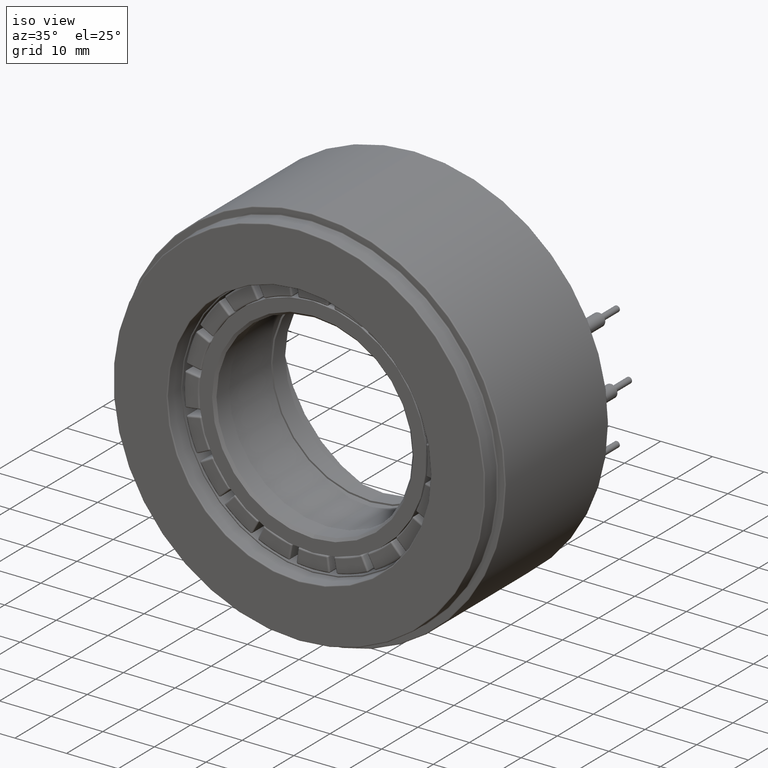
[diagram: clean part render]
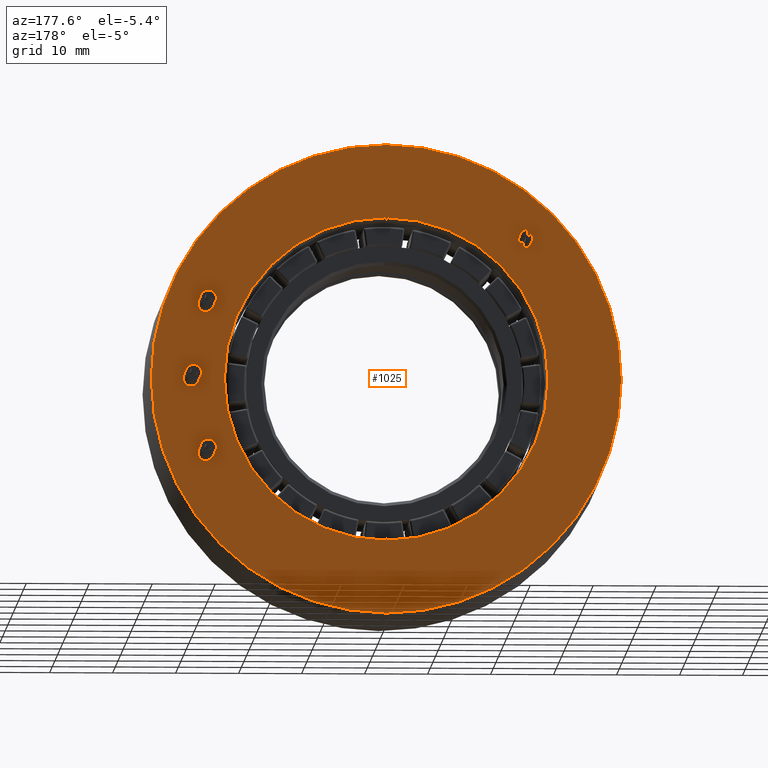
[diagram: tour spotlight — one face highlighted and labeled with its STEP entity id]
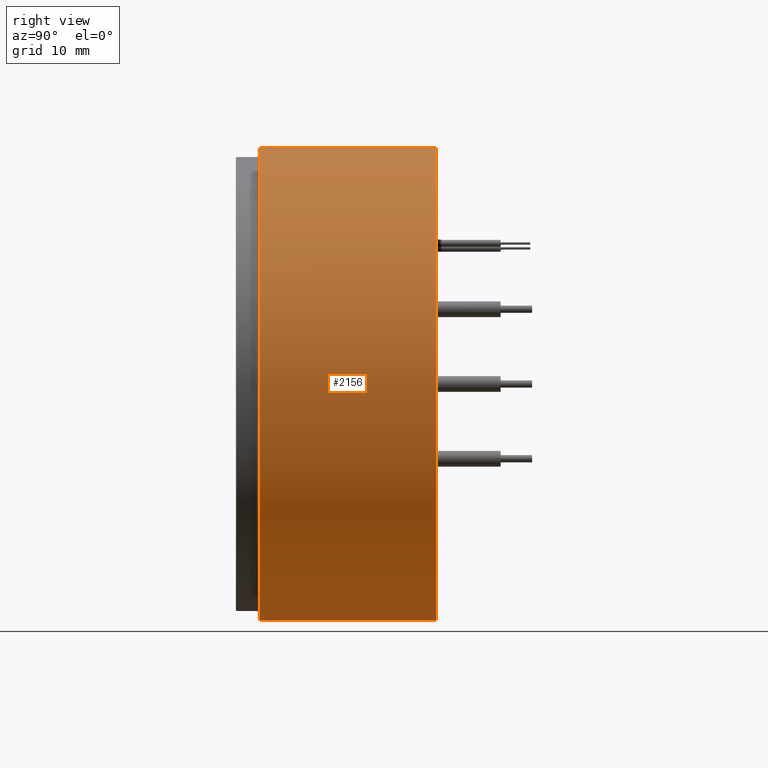
[diagram: tour spotlight — one face highlighted and labeled with its STEP entity id]
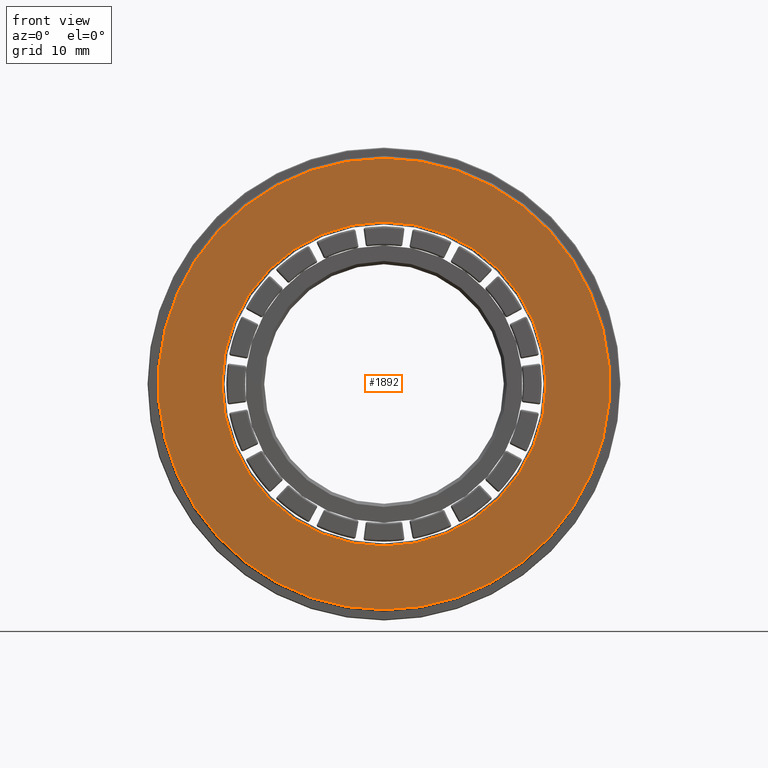
[diagram: tour spotlight — one face highlighted and labeled with its STEP entity id]
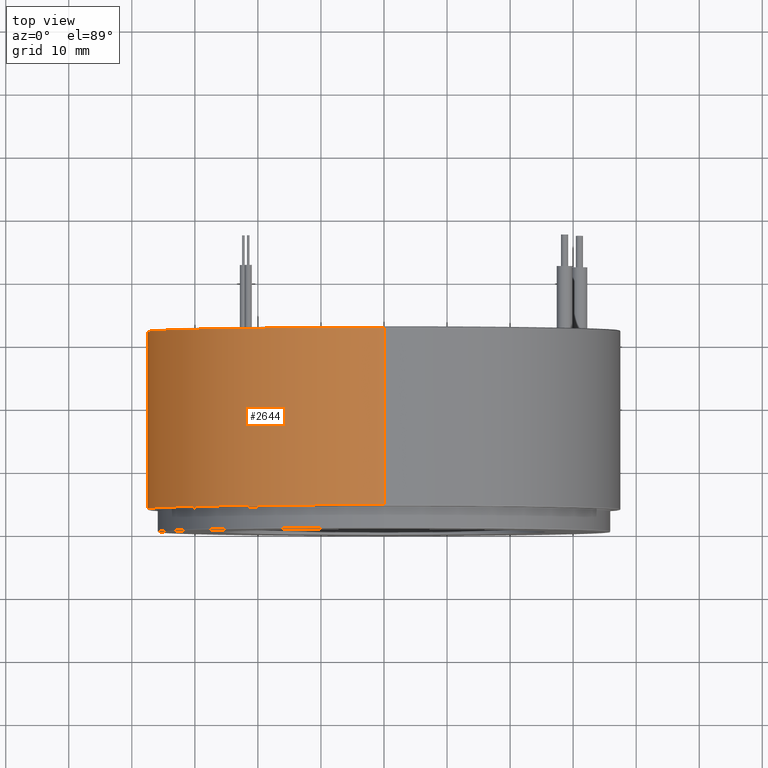
[diagram: tour spotlight — one face highlighted and labeled with its STEP entity id]
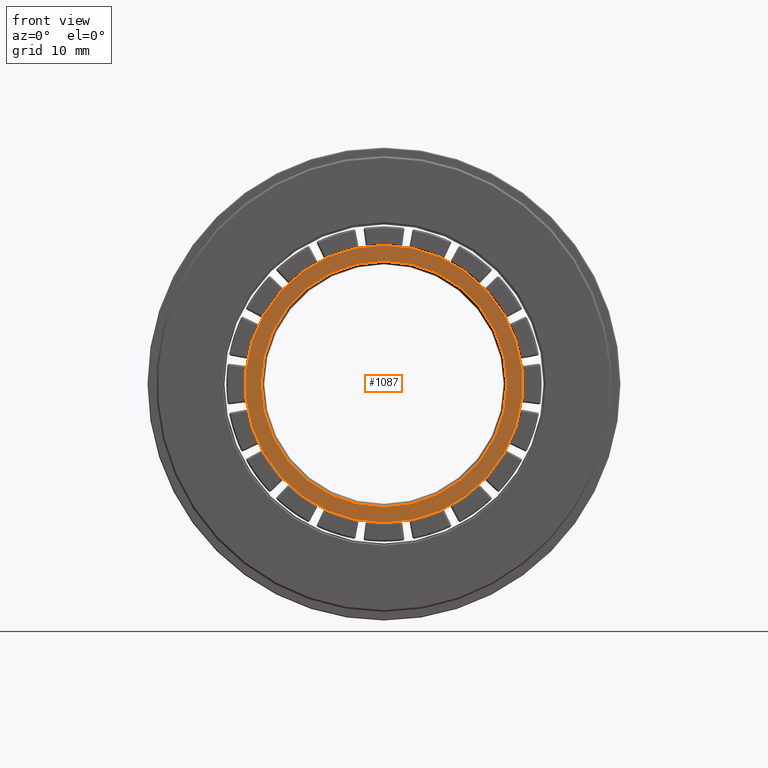
[diagram: tour spotlight — one face highlighted and labeled with its STEP entity id]
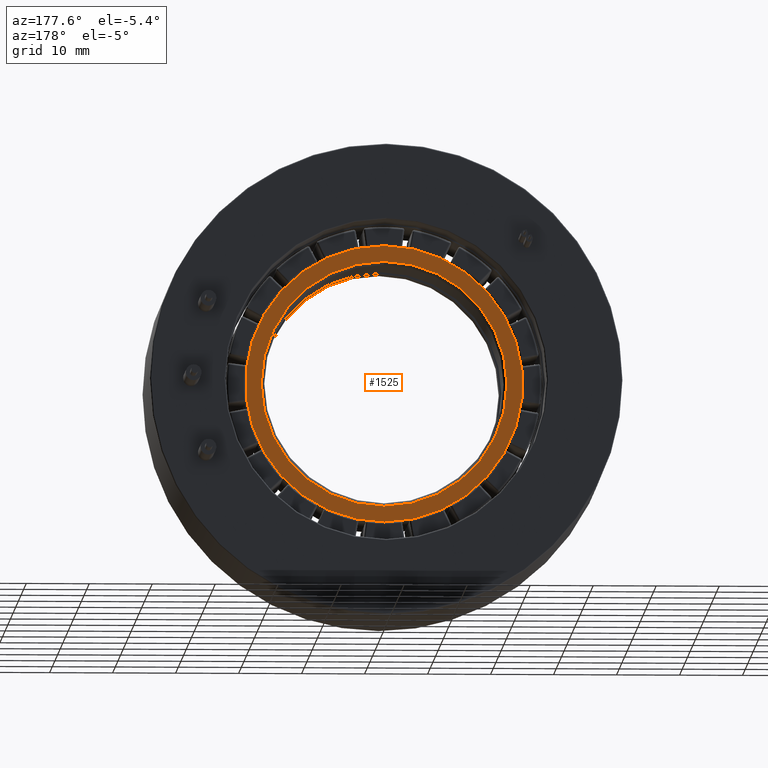
[diagram: tour spotlight — one face highlighted and labeled with its STEP entity id]
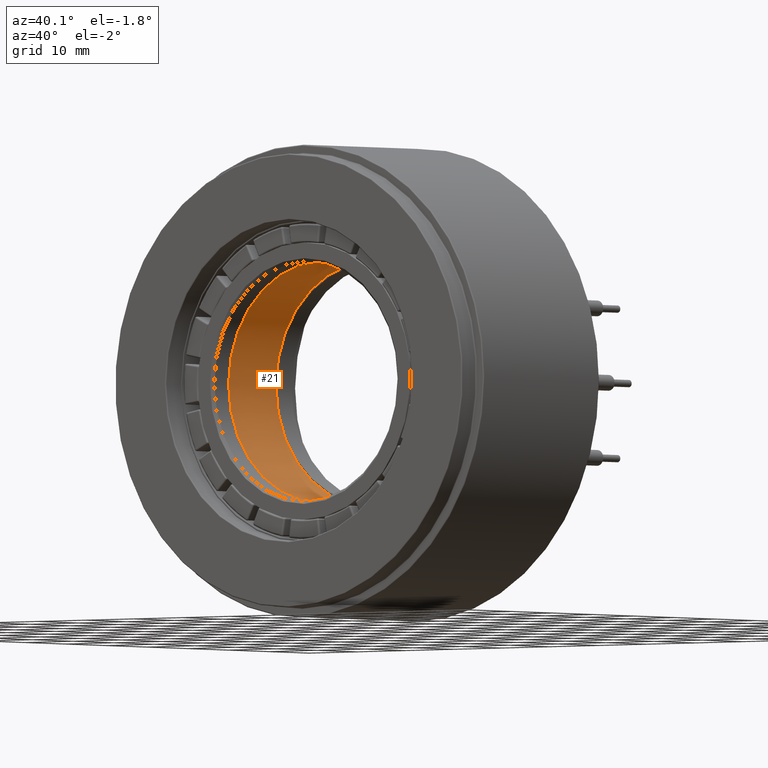
[diagram: tour spotlight — one face highlighted and labeled with its STEP entity id]
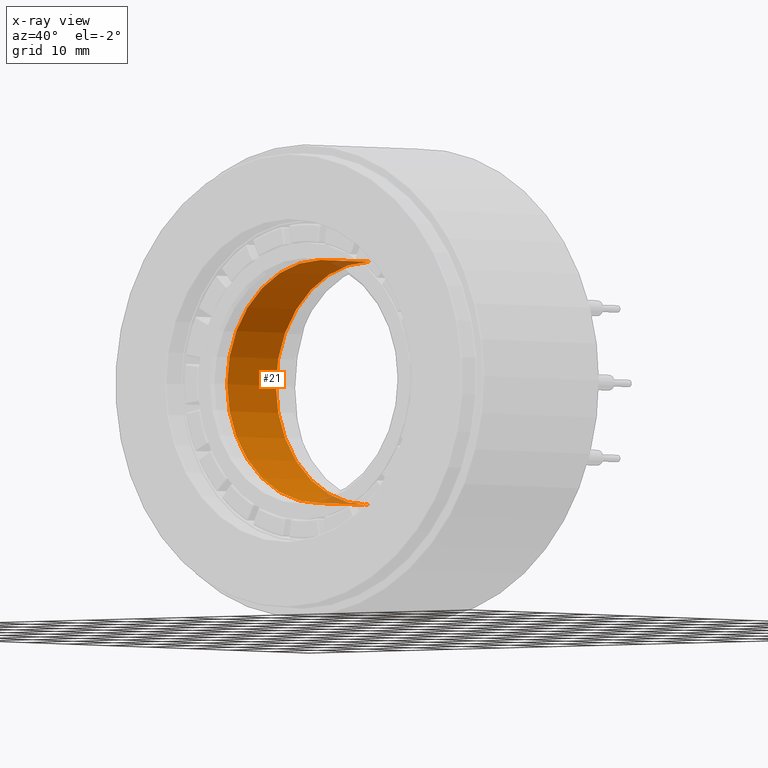
[diagram: x-ray of the same camera — body ghosted, this tour face saturated]
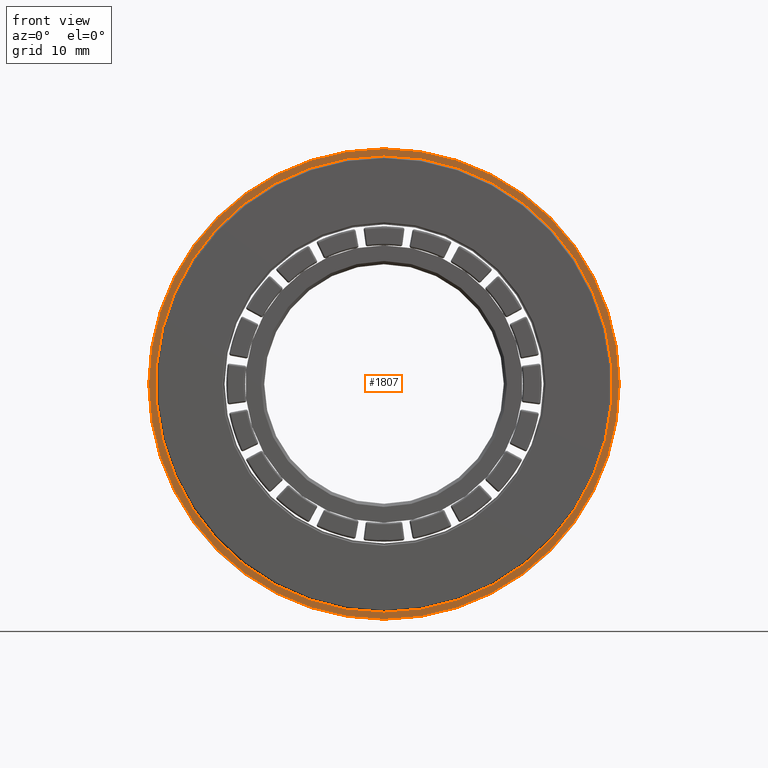
[diagram: tour spotlight — one face highlighted and labeled with its STEP entity id]
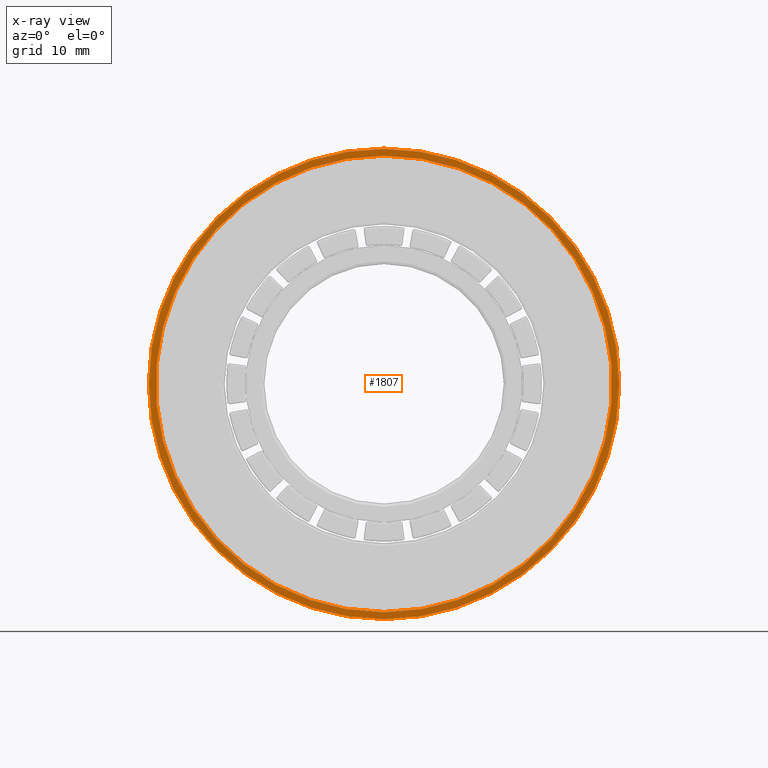
[diagram: x-ray of the same camera — body ghosted, this tour face saturated]
A machine part: a face-by-face anatomy tour. The part has 653 B-rep faces; the first image is the clean iso view, then the 8 largest visible faces are spotlighted one at a time (largest first), each with its STEP entity span.

Face 1 — auxiliary view, entity #1025. In plain terms, the highlighted planar face has unit normal (0, 1, 0).
Definition (entity closure, byte-faithful):
#22 = AXIS2_PLACEMENT_3D ( 'NONE', #2275, #3313, #1754 ) ;
#60 = VERTEX_POINT ( 'NONE', #1746 ) ;
#180 = VERTEX_POINT ( 'NONE', #2267 ) ;
#199 = CARTESIAN_POINT ( 'NONE',  ( 0.0000000000000000000, 32.00000000000000000, 0.0000000000000000000 ) ) ;
#314 = AXIS2_PLACEMENT_3D ( 'NONE', #2924, #2682, #2397 ) ;
#494 = CARTESIAN_POINT ( 'NONE',  ( 0.0000000000000000000, 32.00000000000000000, 25.69999999999999600 ) ) ;
#652 = ORIENTED_EDGE ( 'NONE', *, *, #3138, .T. ) ;
#668 = DIRECTION ( 'NONE',  ( 0.0000000000000000000, 0.0000000000000000000, 1.000000000000000000 ) ) ;
#826 = VERTEX_POINT ( 'NONE', #494 ) ;
#872 = CARTESIAN_POINT ( 'NONE',  ( 4.580179028811101000E-015, 32.00000000000000000, -37.29999999999999700 ) ) ;
#893 = CARTESIAN_POINT ( 'NONE',  ( 0.0000000000000000000, 32.00000000000000000, 0.0000000000000000000 ) ) ;
#936 = DIRECTION ( 'NONE',  ( -0.0000000000000000000, -1.000000000000000000, -0.0000000000000000000 ) ) ;
#963 = VERTEX_POINT ( 'NONE', #872 ) ;
#1025 = ADVANCED_FACE ( 'NONE', ( #3027, #3227 ), #2149, .T. ) ;
#1045 = CIRCLE ( 'NONE', #1390, 37.29999999999999700 ) ;
#1390 = AXIS2_PLACEMENT_3D ( 'NONE', #199, #1759, #1790 ) ;
#1524 = CIRCLE ( 'NONE', #2803, 25.69999999999999600 ) ;
#1699 = CARTESIAN_POINT ( 'NONE',  ( 0.0000000000000000000, 32.00000000000000000, 0.0000000000000000000 ) ) ;
#1746 = CARTESIAN_POINT ( 'NONE',  ( 3.147342273808697300E-015, 32.00000000000000000, -25.69999999999999600 ) ) ;
#1754 = DIRECTION ( 'NONE',  ( 0.0000000000000000000, 0.0000000000000000000, 1.000000000000000000 ) ) ;
#1759 = DIRECTION ( 'NONE',  ( 0.0000000000000000000, 1.000000000000000000, 0.0000000000000000000 ) ) ;
#1790 = DIRECTION ( 'NONE',  ( 0.0000000000000000000, 0.0000000000000000000, 1.000000000000000000 ) ) ;
#1847 = EDGE_CURVE ( 'NONE', #826, #60, #1524, .T. ) ;
#1948 = EDGE_CURVE ( 'NONE', #963, #180, #2465, .T. ) ;
#1951 = DIRECTION ( 'NONE',  ( -0.0000000000000000000, -1.000000000000000000, -0.0000000000000000000 ) ) ;
#2149 = PLANE ( 'NONE',  #314 ) ;
#2267 = CARTESIAN_POINT ( 'NONE',  ( 0.0000000000000000000, 32.00000000000000000, 37.29999999999999700 ) ) ;
#2275 = CARTESIAN_POINT ( 'NONE',  ( 0.0000000000000000000, 32.00000000000000000, 0.0000000000000000000 ) ) ;
#2397 = DIRECTION ( 'NONE',  ( 0.0000000000000000000, -0.0000000000000000000, 1.000000000000000000 ) ) ;
#2465 = CIRCLE ( 'NONE', #22, 37.29999999999999700 ) ;
#2540 = EDGE_LOOP ( 'NONE', ( #2618, #652 ) ) ;
#2618 = ORIENTED_EDGE ( 'NONE', *, *, #1847, .T. ) ;
#2673 = EDGE_LOOP ( 'NONE', ( #3097, #3212 ) ) ;
#2682 = DIRECTION ( 'NONE',  ( 0.0000000000000000000, 1.000000000000000000, 0.0000000000000000000 ) ) ;
#2736 = DIRECTION ( 'NONE',  ( 0.0000000000000000000, 0.0000000000000000000, 1.000000000000000000 ) ) ;
#2803 = AXIS2_PLACEMENT_3D ( 'NONE', #893, #936, #668 ) ;
#2884 = AXIS2_PLACEMENT_3D ( 'NONE', #1699, #1951, #2736 ) ;
#2924 = CARTESIAN_POINT ( 'NONE',  ( 25.50000000000000000, 32.00000000000000000, 0.0000000000000000000 ) ) ;
#3012 = CIRCLE ( 'NONE', #2884, 25.69999999999999600 ) ;
#3027 = FACE_BOUND ( 'NONE', #2540, .T. ) ;
#3097 = ORIENTED_EDGE ( 'NONE', *, *, #3320, .T. ) ;
#3138 = EDGE_CURVE ( 'NONE', #60, #826, #3012, .T. ) ;
#3212 = ORIENTED_EDGE ( 'NONE', *, *, #1948, .T. ) ;
#3227 = FACE_OUTER_BOUND ( 'NONE', #2673, .T. ) ;
#3313 = DIRECTION ( 'NONE',  ( 0.0000000000000000000, 1.000000000000000000, 0.0000000000000000000 ) ) ;
#3320 = EDGE_CURVE ( 'NONE', #180, #963, #1045, .T. ) ;

Face 2 — right view, entity #2156. In plain terms, the highlighted cylindrical surface (partial cylindrical patch) has radius 37.5 mm, axis along (-0, -1, -0).
Definition (entity closure, byte-faithful):
#110 = DIRECTION ( 'NONE',  ( 0.0000000000000000000, 1.000000000000000000, 0.0000000000000000000 ) ) ;
#157 = AXIS2_PLACEMENT_3D ( 'NONE', #2166, #110, #2443 ) ;
#182 = EDGE_LOOP ( 'NONE', ( #1794, #560, #1835, #2023 ) ) ;
#266 = DIRECTION ( 'NONE',  ( -0.0000000000000000000, -1.000000000000000000, -0.0000000000000000000 ) ) ;
#471 = AXIS2_PLACEMENT_3D ( 'NONE', #1839, #266, #1305 ) ;
#560 = ORIENTED_EDGE ( 'NONE', *, *, #2317, .T. ) ;
#715 = LINE ( 'NONE', #797, #2700 ) ;
#797 = CARTESIAN_POINT ( 'NONE',  ( 0.0000000000000000000, 0.0000000000000000000, -37.50000000000000000 ) ) ;
#908 = EDGE_CURVE ( 'NONE', #1006, #1668, #715, .T. ) ;
#966 = FACE_OUTER_BOUND ( 'NONE', #182, .T. ) ;
#1006 = VERTEX_POINT ( 'NONE', #3158 ) ;
#1131 = CYLINDRICAL_SURFACE ( 'NONE', #471, 37.50000000000000000 ) ;
#1206 = VECTOR ( 'NONE', #2879, 1000.000000000000000 ) ;
#1305 = DIRECTION ( 'NONE',  ( 0.0000000000000000000, 0.0000000000000000000, -1.000000000000000000 ) ) ;
#1328 = VERTEX_POINT ( 'NONE', #2826 ) ;
#1398 = CIRCLE ( 'NONE', #2518, 37.50000000000000000 ) ;
#1435 = LINE ( 'NONE', #1606, #1206 ) ;
#1455 = DIRECTION ( 'NONE',  ( 0.0000000000000000000, 0.0000000000000000000, 1.000000000000000000 ) ) ;
#1559 = DIRECTION ( 'NONE',  ( -0.0000000000000000000, -1.000000000000000000, -0.0000000000000000000 ) ) ;
#1606 = CARTESIAN_POINT ( 'NONE',  ( 4.592425496802574400E-015, 0.0000000000000000000, 37.50000000000000000 ) ) ;
#1668 = VERTEX_POINT ( 'NONE', #2941 ) ;
#1739 = EDGE_CURVE ( 'NONE', #2082, #1668, #2177, .T. ) ;
#1794 = ORIENTED_EDGE ( 'NONE', *, *, #1873, .T. ) ;
#1835 = ORIENTED_EDGE ( 'NONE', *, *, #1739, .T. ) ;
#1839 = CARTESIAN_POINT ( 'NONE',  ( 0.0000000000000000000, 0.0000000000000000000, 0.0000000000000000000 ) ) ;
#1873 = EDGE_CURVE ( 'NONE', #1006, #1328, #1398, .T. ) ;
#2023 = ORIENTED_EDGE ( 'NONE', *, *, #908, .F. ) ;
#2082 = VERTEX_POINT ( 'NONE', #2842 ) ;
#2156 = ADVANCED_FACE ( 'NONE', ( #966 ), #1131, .T. ) ;
#2166 = CARTESIAN_POINT ( 'NONE',  ( 0.0000000000000000000, 3.699999999999999700, 0.0000000000000000000 ) ) ;
#2177 = CIRCLE ( 'NONE', #157, 37.50000000000000000 ) ;
#2317 = EDGE_CURVE ( 'NONE', #1328, #2082, #1435, .T. ) ;
#2443 = DIRECTION ( 'NONE',  ( 0.0000000000000000000, 0.0000000000000000000, -1.000000000000000000 ) ) ;
#2518 = AXIS2_PLACEMENT_3D ( 'NONE', #2712, #2744, #1455 ) ;
#2700 = VECTOR ( 'NONE', #1559, 1000.000000000000000 ) ;
#2712 = CARTESIAN_POINT ( 'NONE',  ( 0.0000000000000000000, 31.80000000000000100, 0.0000000000000000000 ) ) ;
#2744 = DIRECTION ( 'NONE',  ( -0.0000000000000000000, -1.000000000000000000, -0.0000000000000000000 ) ) ;
#2826 = CARTESIAN_POINT ( 'NONE',  ( 4.592425496802574400E-015, 31.80000000000000100, 37.50000000000000000 ) ) ;
#2842 = CARTESIAN_POINT ( 'NONE',  ( 4.592425496802574400E-015, 3.699999999999999700, 37.50000000000000000 ) ) ;
#2879 = DIRECTION ( 'NONE',  ( -0.0000000000000000000, -1.000000000000000000, -0.0000000000000000000 ) ) ;
#2941 = CARTESIAN_POINT ( 'NONE',  ( 0.0000000000000000000, 3.699999999999999700, -37.50000000000000000 ) ) ;
#3158 = CARTESIAN_POINT ( 'NONE',  ( 0.0000000000000000000, 31.80000000000000100, -37.50000000000000000 ) ) ;

Face 3 — front view, entity #1892. In plain terms, the highlighted planar face has unit normal (0, -1, 0).
Definition (entity closure, byte-faithful):
#88 = ORIENTED_EDGE ( 'NONE', *, *, #648, .T. ) ;
#141 = EDGE_CURVE ( 'NONE', #1715, #2930, #1621, .T. ) ;
#149 = VERTEX_POINT ( 'NONE', #1448 ) ;
#163 = DIRECTION ( 'NONE',  ( 0.0000000000000000000, -1.000000000000000000, -0.0000000000000000000 ) ) ;
#234 = DIRECTION ( 'NONE',  ( 0.0000000000000000000, 1.000000000000000000, 0.0000000000000000000 ) ) ;
#293 = DIRECTION ( 'NONE',  ( 0.0000000000000000000, 1.000000000000000000, 0.0000000000000000000 ) ) ;
#363 = FACE_BOUND ( 'NONE', #1669, .T. ) ;
#382 = EDGE_LOOP ( 'NONE', ( #1813, #1199 ) ) ;
#411 = CIRCLE ( 'NONE', #1503, 25.69999999999999600 ) ;
#459 = DIRECTION ( 'NONE',  ( -0.0000000000000000000, -1.000000000000000000, -0.0000000000000000000 ) ) ;
#467 = DIRECTION ( 'NONE',  ( 0.0000000000000000000, 0.0000000000000000000, -1.000000000000000000 ) ) ;
#648 = EDGE_CURVE ( 'NONE', #149, #1227, #411, .T. ) ;
#704 = AXIS2_PLACEMENT_3D ( 'NONE', #2488, #163, #2724 ) ;
#785 = EDGE_CURVE ( 'NONE', #1227, #149, #1662, .T. ) ;
#800 = AXIS2_PLACEMENT_3D ( 'NONE', #2066, #2339, #1828 ) ;
#1024 = DIRECTION ( 'NONE',  ( 0.0000000000000000000, 0.0000000000000000000, -1.000000000000000000 ) ) ;
#1073 = CARTESIAN_POINT ( 'NONE',  ( 0.0000000000000000000, -6.234162491791650500E-016, 0.0000000000000000000 ) ) ;
#1199 = ORIENTED_EDGE ( 'NONE', *, *, #141, .T. ) ;
#1227 = VERTEX_POINT ( 'NONE', #3307 ) ;
#1448 = CARTESIAN_POINT ( 'NONE',  ( 3.147342273808697300E-015, -6.234162491791650500E-016, 25.69999999999999600 ) ) ;
#1499 = CARTESIAN_POINT ( 'NONE',  ( 0.0000000000000000000, -6.234162491791650500E-016, 0.0000000000000000000 ) ) ;
#1503 = AXIS2_PLACEMENT_3D ( 'NONE', #1499, #234, #1024 ) ;
#1546 = ORIENTED_EDGE ( 'NONE', *, *, #785, .T. ) ;
#1621 = CIRCLE ( 'NONE', #2448, 35.79999999999999700 ) ;
#1662 = CIRCLE ( 'NONE', #2734, 25.69999999999999600 ) ;
#1669 = EDGE_LOOP ( 'NONE', ( #1546, #88 ) ) ;
#1715 = VERTEX_POINT ( 'NONE', #3163 ) ;
#1813 = ORIENTED_EDGE ( 'NONE', *, *, #2746, .T. ) ;
#1828 = DIRECTION ( 'NONE',  ( 0.0000000000000000000, 0.0000000000000000000, -1.000000000000000000 ) ) ;
#1892 = ADVANCED_FACE ( 'NONE', ( #363, #2423 ), #2477, .T. ) ;
#2066 = CARTESIAN_POINT ( 'NONE',  ( 0.0000000000000000000, -6.234162491791650500E-016, 0.0000000000000000000 ) ) ;
#2089 = DIRECTION ( 'NONE',  ( 0.0000000000000000000, 0.0000000000000000000, -1.000000000000000000 ) ) ;
#2111 = CARTESIAN_POINT ( 'NONE',  ( 0.0000000000000000000, -6.234162491791650500E-016, -35.79999999999999700 ) ) ;
#2339 = DIRECTION ( 'NONE',  ( -0.0000000000000000000, -1.000000000000000000, -0.0000000000000000000 ) ) ;
#2423 = FACE_OUTER_BOUND ( 'NONE', #382, .T. ) ;
#2448 = AXIS2_PLACEMENT_3D ( 'NONE', #2781, #459, #467 ) ;
#2477 = PLANE ( 'NONE',  #704 ) ;
#2488 = CARTESIAN_POINT ( 'NONE',  ( 36.00000000000000000, -6.368163355566238400E-016, 0.0000000000000000000 ) ) ;
#2724 = DIRECTION ( 'NONE',  ( 0.0000000000000000000, 0.0000000000000000000, -1.000000000000000000 ) ) ;
#2734 = AXIS2_PLACEMENT_3D ( 'NONE', #1073, #293, #2089 ) ;
#2746 = EDGE_CURVE ( 'NONE', #2930, #1715, #3254, .T. ) ;
#2781 = CARTESIAN_POINT ( 'NONE',  ( 0.0000000000000000000, -6.234162491791650500E-016, 0.0000000000000000000 ) ) ;
#2930 = VERTEX_POINT ( 'NONE', #2111 ) ;
#3163 = CARTESIAN_POINT ( 'NONE',  ( 4.396482008938998300E-015, -6.234162491791650500E-016, 35.79999999999999700 ) ) ;
#3254 = CIRCLE ( 'NONE', #800, 35.79999999999999700 ) ;
#3307 = CARTESIAN_POINT ( 'NONE',  ( 0.0000000000000000000, -6.234162491791650500E-016, -25.69999999999999600 ) ) ;

Face 4 — top view, entity #2644. In plain terms, the highlighted cylindrical surface (partial cylindrical patch) has radius 37.5 mm, axis along (-0, -1, -0).
Definition (entity closure, byte-faithful):
#236 = FACE_OUTER_BOUND ( 'NONE', #2312, .T. ) ;
#320 = AXIS2_PLACEMENT_3D ( 'NONE', #757, #2092, #1797 ) ;
#418 = ORIENTED_EDGE ( 'NONE', *, *, #2317, .F. ) ;
#709 = DIRECTION ( 'NONE',  ( 0.0000000000000000000, 1.000000000000000000, 0.0000000000000000000 ) ) ;
#715 = LINE ( 'NONE', #797, #2700 ) ;
#757 = CARTESIAN_POINT ( 'NONE',  ( 0.0000000000000000000, 31.80000000000000100, 0.0000000000000000000 ) ) ;
#797 = CARTESIAN_POINT ( 'NONE',  ( 0.0000000000000000000, 0.0000000000000000000, -37.50000000000000000 ) ) ;
#875 = CIRCLE ( 'NONE', #879, 37.50000000000000000 ) ;
#879 = AXIS2_PLACEMENT_3D ( 'NONE', #3280, #709, #2531 ) ;
#908 = EDGE_CURVE ( 'NONE', #1006, #1668, #715, .T. ) ;
#962 = CYLINDRICAL_SURFACE ( 'NONE', #3008, 37.50000000000000000 ) ;
#1006 = VERTEX_POINT ( 'NONE', #3158 ) ;
#1065 = ORIENTED_EDGE ( 'NONE', *, *, #2035, .T. ) ;
#1206 = VECTOR ( 'NONE', #2879, 1000.000000000000000 ) ;
#1328 = VERTEX_POINT ( 'NONE', #2826 ) ;
#1435 = LINE ( 'NONE', #1606, #1206 ) ;
#1559 = DIRECTION ( 'NONE',  ( -0.0000000000000000000, -1.000000000000000000, -0.0000000000000000000 ) ) ;
#1606 = CARTESIAN_POINT ( 'NONE',  ( 4.592425496802574400E-015, 0.0000000000000000000, 37.50000000000000000 ) ) ;
#1619 = ORIENTED_EDGE ( 'NONE', *, *, #2058, .T. ) ;
#1668 = VERTEX_POINT ( 'NONE', #2941 ) ;
#1797 = DIRECTION ( 'NONE',  ( 0.0000000000000000000, 0.0000000000000000000, 1.000000000000000000 ) ) ;
#2013 = CIRCLE ( 'NONE', #320, 37.50000000000000000 ) ;
#2014 = DIRECTION ( 'NONE',  ( 0.0000000000000000000, 0.0000000000000000000, -1.000000000000000000 ) ) ;
#2025 = CARTESIAN_POINT ( 'NONE',  ( 0.0000000000000000000, 0.0000000000000000000, 0.0000000000000000000 ) ) ;
#2035 = EDGE_CURVE ( 'NONE', #1668, #2082, #875, .T. ) ;
#2058 = EDGE_CURVE ( 'NONE', #1328, #1006, #2013, .T. ) ;
#2082 = VERTEX_POINT ( 'NONE', #2842 ) ;
#2092 = DIRECTION ( 'NONE',  ( -0.0000000000000000000, -1.000000000000000000, -0.0000000000000000000 ) ) ;
#2312 = EDGE_LOOP ( 'NONE', ( #418, #1619, #2433, #1065 ) ) ;
#2317 = EDGE_CURVE ( 'NONE', #1328, #2082, #1435, .T. ) ;
#2433 = ORIENTED_EDGE ( 'NONE', *, *, #908, .T. ) ;
#2531 = DIRECTION ( 'NONE',  ( 0.0000000000000000000, 0.0000000000000000000, -1.000000000000000000 ) ) ;
#2644 = ADVANCED_FACE ( 'NONE', ( #236 ), #962, .T. ) ;
#2700 = VECTOR ( 'NONE', #1559, 1000.000000000000000 ) ;
#2826 = CARTESIAN_POINT ( 'NONE',  ( 4.592425496802574400E-015, 31.80000000000000100, 37.50000000000000000 ) ) ;
#2842 = CARTESIAN_POINT ( 'NONE',  ( 4.592425496802574400E-015, 3.699999999999999700, 37.50000000000000000 ) ) ;
#2879 = DIRECTION ( 'NONE',  ( -0.0000000000000000000, -1.000000000000000000, -0.0000000000000000000 ) ) ;
#2941 = CARTESIAN_POINT ( 'NONE',  ( 0.0000000000000000000, 3.699999999999999700, -37.50000000000000000 ) ) ;
#3008 = AXIS2_PLACEMENT_3D ( 'NONE', #2025, #3058, #2014 ) ;
#3058 = DIRECTION ( 'NONE',  ( -0.0000000000000000000, -1.000000000000000000, -0.0000000000000000000 ) ) ;
#3158 = CARTESIAN_POINT ( 'NONE',  ( 0.0000000000000000000, 31.80000000000000100, -37.50000000000000000 ) ) ;
#3280 = CARTESIAN_POINT ( 'NONE',  ( 0.0000000000000000000, 3.699999999999999700, 0.0000000000000000000 ) ) ;

Face 5 — front view, entity #1087. In plain terms, the highlighted planar face has unit normal (0, -1, 0).
Definition (entity closure, byte-faithful):
#50 = ORIENTED_EDGE ( 'NONE', *, *, #2386, .T. ) ;
#80 = AXIS2_PLACEMENT_3D ( 'NONE', #167, #2226, #2992 ) ;
#114 = PLANE ( 'NONE',  #661 ) ;
#147 = DIRECTION ( 'NONE',  ( -0.0000000000000000000, -1.000000000000000000, -0.0000000000000000000 ) ) ;
#167 = CARTESIAN_POINT ( 'NONE',  ( 0.0000000000000000000, 0.0000000000000000000, 0.0000000000000000000 ) ) ;
#212 = ORIENTED_EDGE ( 'NONE', *, *, #495, .T. ) ;
#235 = VERTEX_POINT ( 'NONE', #1781 ) ;
#415 = AXIS2_PLACEMENT_3D ( 'NONE', #2949, #2162, #1158 ) ;
#479 = FACE_BOUND ( 'NONE', #3281, .T. ) ;
#495 = EDGE_CURVE ( 'NONE', #3128, #2071, #718, .T. ) ;
#599 = AXIS2_PLACEMENT_3D ( 'NONE', #1706, #147, #921 ) ;
#610 = CARTESIAN_POINT ( 'NONE',  ( 0.0000000000000000000, -1.836970198721029700E-016, 0.0000000000000000000 ) ) ;
#627 = CARTESIAN_POINT ( 'NONE',  ( 19.00000000000000000, -1.836970198721029700E-016, 0.0000000000000000000 ) ) ;
#661 = AXIS2_PLACEMENT_3D ( 'NONE', #627, #3225, #3214 ) ;
#718 = CIRCLE ( 'NONE', #415, 19.50000000000000000 ) ;
#772 = CARTESIAN_POINT ( 'NONE',  ( 2.694222958124176800E-015, 0.0000000000000000000, 22.00000000000000000 ) ) ;
#863 = DIRECTION ( 'NONE',  ( 0.0000000000000000000, 1.000000000000000000, 0.0000000000000000000 ) ) ;
#921 = DIRECTION ( 'NONE',  ( 0.0000000000000000000, 0.0000000000000000000, -1.000000000000000000 ) ) ;
#1003 = AXIS2_PLACEMENT_3D ( 'NONE', #610, #863, #3277 ) ;
#1015 = CARTESIAN_POINT ( 'NONE',  ( 2.388061258337338900E-015, -1.836970198721029700E-016, 19.50000000000000000 ) ) ;
#1067 = EDGE_CURVE ( 'NONE', #235, #1428, #2140, .T. ) ;
#1087 = ADVANCED_FACE ( 'NONE', ( #479, #1742 ), #114, .T. ) ;
#1158 = DIRECTION ( 'NONE',  ( 0.0000000000000000000, 0.0000000000000000000, -1.000000000000000000 ) ) ;
#1428 = VERTEX_POINT ( 'NONE', #772 ) ;
#1589 = ORIENTED_EDGE ( 'NONE', *, *, #1887, .T. ) ;
#1704 = ORIENTED_EDGE ( 'NONE', *, *, #1067, .T. ) ;
#1706 = CARTESIAN_POINT ( 'NONE',  ( 0.0000000000000000000, 0.0000000000000000000, 0.0000000000000000000 ) ) ;
#1738 = CIRCLE ( 'NONE', #599, 22.00000000000000000 ) ;
#1742 = FACE_OUTER_BOUND ( 'NONE', #1770, .T. ) ;
#1770 = EDGE_LOOP ( 'NONE', ( #1704, #1589 ) ) ;
#1781 = CARTESIAN_POINT ( 'NONE',  ( 0.0000000000000000000, 0.0000000000000000000, -22.00000000000000000 ) ) ;
#1887 = EDGE_CURVE ( 'NONE', #1428, #235, #1738, .T. ) ;
#2071 = VERTEX_POINT ( 'NONE', #1015 ) ;
#2140 = CIRCLE ( 'NONE', #80, 22.00000000000000000 ) ;
#2162 = DIRECTION ( 'NONE',  ( 0.0000000000000000000, 1.000000000000000000, 0.0000000000000000000 ) ) ;
#2226 = DIRECTION ( 'NONE',  ( -0.0000000000000000000, -1.000000000000000000, -0.0000000000000000000 ) ) ;
#2386 = EDGE_CURVE ( 'NONE', #2071, #3128, #2935, .T. ) ;
#2457 = CARTESIAN_POINT ( 'NONE',  ( 0.0000000000000000000, -1.836970198721029700E-016, -19.50000000000000000 ) ) ;
#2935 = CIRCLE ( 'NONE', #1003, 19.50000000000000000 ) ;
#2949 = CARTESIAN_POINT ( 'NONE',  ( 0.0000000000000000000, -1.836970198721029700E-016, 0.0000000000000000000 ) ) ;
#2992 = DIRECTION ( 'NONE',  ( 0.0000000000000000000, 0.0000000000000000000, -1.000000000000000000 ) ) ;
#3128 = VERTEX_POINT ( 'NONE', #2457 ) ;
#3214 = DIRECTION ( 'NONE',  ( 0.0000000000000000000, 0.0000000000000000000, -1.000000000000000000 ) ) ;
#3225 = DIRECTION ( 'NONE',  ( 0.0000000000000000000, -1.000000000000000000, -0.0000000000000000000 ) ) ;
#3277 = DIRECTION ( 'NONE',  ( 0.0000000000000000000, 0.0000000000000000000, -1.000000000000000000 ) ) ;
#3281 = EDGE_LOOP ( 'NONE', ( #212, #50 ) ) ;

Face 6 — auxiliary view, entity #1525. In plain terms, the highlighted planar face has unit normal (0, 1, 0).
Definition (entity closure, byte-faithful):
#210 = CARTESIAN_POINT ( 'NONE',  ( 0.0000000000000000000, 20.00000000000000000, 19.50000000000000000 ) ) ;
#256 = VERTEX_POINT ( 'NONE', #1588 ) ;
#312 = DIRECTION ( 'NONE',  ( 0.0000000000000000000, 1.000000000000000000, 0.0000000000000000000 ) ) ;
#350 = EDGE_CURVE ( 'NONE', #1829, #1177, #2184, .T. ) ;
#353 = ORIENTED_EDGE ( 'NONE', *, *, #2559, .T. ) ;
#580 = EDGE_CURVE ( 'NONE', #1177, #1829, #2705, .T. ) ;
#581 = AXIS2_PLACEMENT_3D ( 'NONE', #943, #1202, #3005 ) ;
#664 = DIRECTION ( 'NONE',  ( 0.0000000000000000000, 0.0000000000000000000, -1.000000000000000000 ) ) ;
#675 = ORIENTED_EDGE ( 'NONE', *, *, #350, .F. ) ;
#943 = CARTESIAN_POINT ( 'NONE',  ( 0.0000000000000000000, 20.00000000000000000, 0.0000000000000000000 ) ) ;
#945 = DIRECTION ( 'NONE',  ( -0.0000000000000000000, -1.000000000000000000, -0.0000000000000000000 ) ) ;
#1080 = PLANE ( 'NONE',  #1196 ) ;
#1099 = AXIS2_PLACEMENT_3D ( 'NONE', #3149, #1607, #1385 ) ;
#1136 = CIRCLE ( 'NONE', #2849, 19.50000000000000000 ) ;
#1149 = ORIENTED_EDGE ( 'NONE', *, *, #1868, .T. ) ;
#1177 = VERTEX_POINT ( 'NONE', #1710 ) ;
#1196 = AXIS2_PLACEMENT_3D ( 'NONE', #1342, #312, #2392 ) ;
#1202 = DIRECTION ( 'NONE',  ( -0.0000000000000000000, -1.000000000000000000, -0.0000000000000000000 ) ) ;
#1203 = CIRCLE ( 'NONE', #581, 19.50000000000000000 ) ;
#1270 = VERTEX_POINT ( 'NONE', #210 ) ;
#1342 = CARTESIAN_POINT ( 'NONE',  ( 19.00000000000000000, 20.00000000000000000, 0.0000000000000000000 ) ) ;
#1349 = ORIENTED_EDGE ( 'NONE', *, *, #580, .F. ) ;
#1385 = DIRECTION ( 'NONE',  ( 0.0000000000000000000, 0.0000000000000000000, -1.000000000000000000 ) ) ;
#1441 = CARTESIAN_POINT ( 'NONE',  ( 0.0000000000000000000, 20.00000000000000000, 0.0000000000000000000 ) ) ;
#1525 = ADVANCED_FACE ( 'NONE', ( #2583, #1529 ), #1080, .T. ) ;
#1529 = FACE_OUTER_BOUND ( 'NONE', #2963, .T. ) ;
#1588 = CARTESIAN_POINT ( 'NONE',  ( 2.388061258337338900E-015, 20.00000000000000000, -19.50000000000000000 ) ) ;
#1607 = DIRECTION ( 'NONE',  ( -0.0000000000000000000, -1.000000000000000000, -0.0000000000000000000 ) ) ;
#1710 = CARTESIAN_POINT ( 'NONE',  ( 2.694222958124176800E-015, 20.00000000000000000, 22.00000000000000000 ) ) ;
#1829 = VERTEX_POINT ( 'NONE', #1946 ) ;
#1868 = EDGE_CURVE ( 'NONE', #256, #1270, #1136, .T. ) ;
#1946 = CARTESIAN_POINT ( 'NONE',  ( 0.0000000000000000000, 20.00000000000000000, -22.00000000000000000 ) ) ;
#2030 = AXIS2_PLACEMENT_3D ( 'NONE', #2240, #945, #664 ) ;
#2184 = CIRCLE ( 'NONE', #1099, 22.00000000000000000 ) ;
#2240 = CARTESIAN_POINT ( 'NONE',  ( 0.0000000000000000000, 20.00000000000000000, 0.0000000000000000000 ) ) ;
#2392 = DIRECTION ( 'NONE',  ( 0.0000000000000000000, -0.0000000000000000000, 1.000000000000000000 ) ) ;
#2484 = EDGE_LOOP ( 'NONE', ( #353, #1149 ) ) ;
#2559 = EDGE_CURVE ( 'NONE', #1270, #256, #1203, .T. ) ;
#2583 = FACE_BOUND ( 'NONE', #2484, .T. ) ;
#2699 = DIRECTION ( 'NONE',  ( 0.0000000000000000000, 0.0000000000000000000, 1.000000000000000000 ) ) ;
#2705 = CIRCLE ( 'NONE', #2030, 22.00000000000000000 ) ;
#2849 = AXIS2_PLACEMENT_3D ( 'NONE', #1441, #3232, #2699 ) ;
#2963 = EDGE_LOOP ( 'NONE', ( #675, #1349 ) ) ;
#3005 = DIRECTION ( 'NONE',  ( 0.0000000000000000000, 0.0000000000000000000, 1.000000000000000000 ) ) ;
#3149 = CARTESIAN_POINT ( 'NONE',  ( 0.0000000000000000000, 20.00000000000000000, 0.0000000000000000000 ) ) ;
#3232 = DIRECTION ( 'NONE',  ( -0.0000000000000000000, -1.000000000000000000, -0.0000000000000000000 ) ) ;

Face 7 — auxiliary view, entity #21. An x-ray twin of the same camera follows (body ghosted, this face saturated) — the face is partly hidden behind the body. In plain terms, the highlighted cylindrical surface (partial cylindrical patch) has radius 19.3 mm, axis along (0, -1, 0).
Definition (entity closure, byte-faithful):
#21 = ADVANCED_FACE ( 'NONE', ( #2955 ), #754, .F. ) ;
#62 = EDGE_CURVE ( 'NONE', #1470, #1016, #2827, .T. ) ;
#76 = DIRECTION ( 'NONE',  ( -0.0000000000000000000, -1.000000000000000000, -0.0000000000000000000 ) ) ;
#137 = CARTESIAN_POINT ( 'NONE',  ( 2.363568322354391800E-015, 4.000000000000000000, 19.30000000000000100 ) ) ;
#230 = CARTESIAN_POINT ( 'NONE',  ( 0.0000000000000000000, 16.00000000000000000, -19.29999999999999700 ) ) ;
#302 = ORIENTED_EDGE ( 'NONE', *, *, #1107, .F. ) ;
#340 = CARTESIAN_POINT ( 'NONE',  ( 2.363568322354391400E-015, 16.00000000000000000, 19.29999999999999700 ) ) ;
#602 = ORIENTED_EDGE ( 'NONE', *, *, #1694, .T. ) ;
#654 = AXIS2_PLACEMENT_3D ( 'NONE', #1234, #2003, #951 ) ;
#699 = CARTESIAN_POINT ( 'NONE',  ( 0.0000000000000000000, 16.00000000000000000, 0.0000000000000000000 ) ) ;
#739 = VECTOR ( 'NONE', #3066, 1000.000000000000000 ) ;
#754 = CYLINDRICAL_SURFACE ( 'NONE', #654, 19.29999999999999700 ) ;
#764 = EDGE_LOOP ( 'NONE', ( #302, #1757, #1180, #602 ) ) ;
#929 = VECTOR ( 'NONE', #3250, 1000.000000000000000 ) ;
#951 = DIRECTION ( 'NONE',  ( 0.0000000000000000000, 0.0000000000000000000, -1.000000000000000000 ) ) ;
#1016 = VERTEX_POINT ( 'NONE', #340 ) ;
#1107 = EDGE_CURVE ( 'NONE', #1016, #1907, #1176, .T. ) ;
#1176 = LINE ( 'NONE', #1922, #929 ) ;
#1180 = ORIENTED_EDGE ( 'NONE', *, *, #1840, .T. ) ;
#1234 = CARTESIAN_POINT ( 'NONE',  ( 0.0000000000000000000, 0.0000000000000000000, 0.0000000000000000000 ) ) ;
#1470 = VERTEX_POINT ( 'NONE', #230 ) ;
#1637 = CARTESIAN_POINT ( 'NONE',  ( 0.0000000000000000000, 4.000000000000000000, 0.0000000000000000000 ) ) ;
#1694 = EDGE_CURVE ( 'NONE', #3279, #1907, #1856, .T. ) ;
#1757 = ORIENTED_EDGE ( 'NONE', *, *, #62, .F. ) ;
#1768 = CARTESIAN_POINT ( 'NONE',  ( 0.0000000000000000000, 0.0000000000000000000, -19.29999999999999700 ) ) ;
#1840 = EDGE_CURVE ( 'NONE', #1470, #3279, #3095, .T. ) ;
#1856 = CIRCLE ( 'NONE', #2472, 19.30000000000000100 ) ;
#1891 = DIRECTION ( 'NONE',  ( 0.0000000000000000000, 0.0000000000000000000, -1.000000000000000000 ) ) ;
#1907 = VERTEX_POINT ( 'NONE', #137 ) ;
#1922 = CARTESIAN_POINT ( 'NONE',  ( 2.363568322354391400E-015, 0.0000000000000000000, 19.29999999999999700 ) ) ;
#2003 = DIRECTION ( 'NONE',  ( -0.0000000000000000000, -1.000000000000000000, -0.0000000000000000000 ) ) ;
#2472 = AXIS2_PLACEMENT_3D ( 'NONE', #1637, #76, #1891 ) ;
#2714 = CARTESIAN_POINT ( 'NONE',  ( 0.0000000000000000000, 4.000000000000000000, -19.30000000000000100 ) ) ;
#2770 = DIRECTION ( 'NONE',  ( -0.0000000000000000000, -1.000000000000000000, -0.0000000000000000000 ) ) ;
#2827 = CIRCLE ( 'NONE', #3002, 19.29999999999999700 ) ;
#2955 = FACE_OUTER_BOUND ( 'NONE', #764, .T. ) ;
#3002 = AXIS2_PLACEMENT_3D ( 'NONE', #699, #2770, #3038 ) ;
#3038 = DIRECTION ( 'NONE',  ( 0.0000000000000000000, 0.0000000000000000000, -1.000000000000000000 ) ) ;
#3066 = DIRECTION ( 'NONE',  ( -0.0000000000000000000, -1.000000000000000000, -0.0000000000000000000 ) ) ;
#3095 = LINE ( 'NONE', #1768, #739 ) ;
#3250 = DIRECTION ( 'NONE',  ( -0.0000000000000000000, -1.000000000000000000, -0.0000000000000000000 ) ) ;
#3279 = VERTEX_POINT ( 'NONE', #2714 ) ;

Face 8 — front view, entity #1807. An x-ray twin of the same camera follows (body ghosted, this face saturated) — the face is partly hidden behind the body. In plain terms, the highlighted planar face has unit normal (0, -1, 0).
Definition (entity closure, byte-faithful):
#20 = CARTESIAN_POINT ( 'NONE',  ( 0.0000000000000000000, 3.499999999999999600, 0.0000000000000000000 ) ) ;
#58 = CARTESIAN_POINT ( 'NONE',  ( 0.0000000000000000000, 3.499999999999999600, 0.0000000000000000000 ) ) ;
#94 = ORIENTED_EDGE ( 'NONE', *, *, #244, .T. ) ;
#129 = CIRCLE ( 'NONE', #1554, 37.29999999999999700 ) ;
#173 = CARTESIAN_POINT ( 'NONE',  ( 37.50000000000000000, 3.499999999999999600, 0.0000000000000000000 ) ) ;
#213 = ORIENTED_EDGE ( 'NONE', *, *, #1557, .T. ) ;
#244 = EDGE_CURVE ( 'NONE', #3068, #1497, #129, .T. ) ;
#289 = DIRECTION ( 'NONE',  ( 0.0000000000000000000, 0.0000000000000000000, -1.000000000000000000 ) ) ;
#523 = CARTESIAN_POINT ( 'NONE',  ( 4.580179028811101000E-015, 3.499999999999999600, 37.29999999999999700 ) ) ;
#681 = DIRECTION ( 'NONE',  ( 0.0000000000000000000, 0.0000000000000000000, -1.000000000000000000 ) ) ;
#753 = EDGE_LOOP ( 'NONE', ( #94, #2670 ) ) ;
#767 = VERTEX_POINT ( 'NONE', #2319 ) ;
#815 = DIRECTION ( 'NONE',  ( 0.0000000000000000000, 0.0000000000000000000, -1.000000000000000000 ) ) ;
#830 = AXIS2_PLACEMENT_3D ( 'NONE', #173, #2242, #2997 ) ;
#909 = ORIENTED_EDGE ( 'NONE', *, *, #2642, .T. ) ;
#915 = CIRCLE ( 'NONE', #1274, 36.19999999999999600 ) ;
#970 = FACE_OUTER_BOUND ( 'NONE', #753, .T. ) ;
#1197 = EDGE_CURVE ( 'NONE', #1497, #3068, #1783, .T. ) ;
#1207 = PLANE ( 'NONE',  #830 ) ;
#1224 = DIRECTION ( 'NONE',  ( 0.0000000000000000000, 1.000000000000000000, 0.0000000000000000000 ) ) ;
#1274 = AXIS2_PLACEMENT_3D ( 'NONE', #2772, #1224, #1464 ) ;
#1464 = DIRECTION ( 'NONE',  ( 0.0000000000000000000, 0.0000000000000000000, -1.000000000000000000 ) ) ;
#1483 = DIRECTION ( 'NONE',  ( -0.0000000000000000000, -1.000000000000000000, -0.0000000000000000000 ) ) ;
#1497 = VERTEX_POINT ( 'NONE', #523 ) ;
#1498 = EDGE_LOOP ( 'NONE', ( #909, #213 ) ) ;
#1554 = AXIS2_PLACEMENT_3D ( 'NONE', #58, #2361, #815 ) ;
#1557 = EDGE_CURVE ( 'NONE', #2754, #767, #2735, .T. ) ;
#1783 = CIRCLE ( 'NONE', #2841, 37.29999999999999700 ) ;
#1807 = ADVANCED_FACE ( 'NONE', ( #970, #2217 ), #1207, .T. ) ;
#2095 = DIRECTION ( 'NONE',  ( 0.0000000000000000000, 1.000000000000000000, 0.0000000000000000000 ) ) ;
#2217 = FACE_BOUND ( 'NONE', #1498, .T. ) ;
#2242 = DIRECTION ( 'NONE',  ( 0.0000000000000000000, -1.000000000000000000, -0.0000000000000000000 ) ) ;
#2319 = CARTESIAN_POINT ( 'NONE',  ( 0.0000000000000000000, 3.499999999999999600, -36.19999999999999600 ) ) ;
#2361 = DIRECTION ( 'NONE',  ( -0.0000000000000000000, -1.000000000000000000, -0.0000000000000000000 ) ) ;
#2598 = CARTESIAN_POINT ( 'NONE',  ( 4.433221412913418400E-015, 3.499999999999999600, 36.19999999999999600 ) ) ;
#2642 = EDGE_CURVE ( 'NONE', #767, #2754, #915, .T. ) ;
#2670 = ORIENTED_EDGE ( 'NONE', *, *, #1197, .T. ) ;
#2676 = AXIS2_PLACEMENT_3D ( 'NONE', #20, #2095, #289 ) ;
#2735 = CIRCLE ( 'NONE', #2676, 36.19999999999999600 ) ;
#2754 = VERTEX_POINT ( 'NONE', #2598 ) ;
#2772 = CARTESIAN_POINT ( 'NONE',  ( 0.0000000000000000000, 3.499999999999999600, 0.0000000000000000000 ) ) ;
#2841 = AXIS2_PLACEMENT_3D ( 'NONE', #3026, #1483, #681 ) ;
#2997 = DIRECTION ( 'NONE',  ( 0.0000000000000000000, 0.0000000000000000000, -1.000000000000000000 ) ) ;
#3026 = CARTESIAN_POINT ( 'NONE',  ( 0.0000000000000000000, 3.499999999999999600, 0.0000000000000000000 ) ) ;
#3068 = VERTEX_POINT ( 'NONE', #3205 ) ;
#3205 = CARTESIAN_POINT ( 'NONE',  ( 0.0000000000000000000, 3.499999999999999600, -37.29999999999999700 ) ) ;